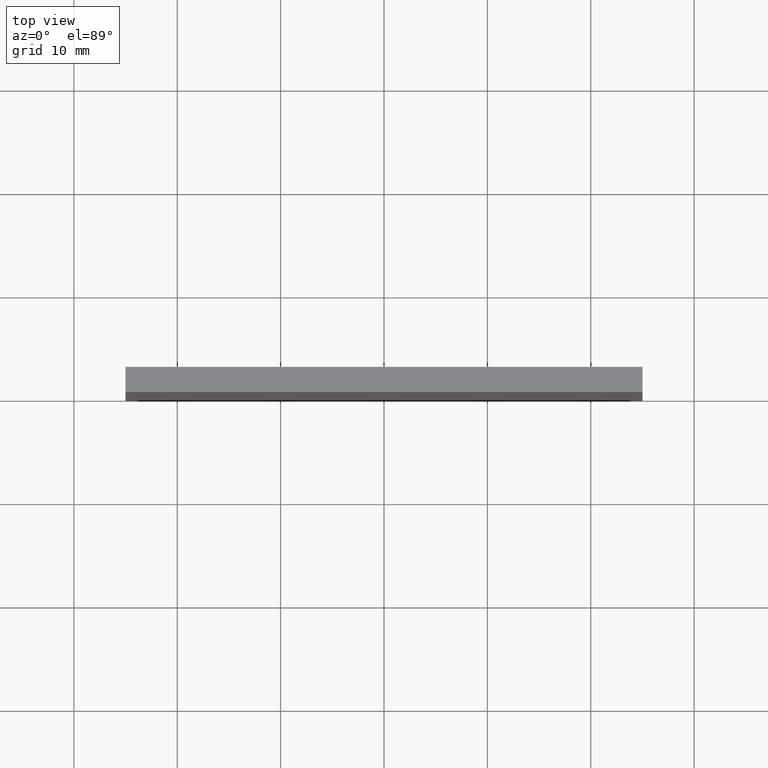
[diagram: clean part render]
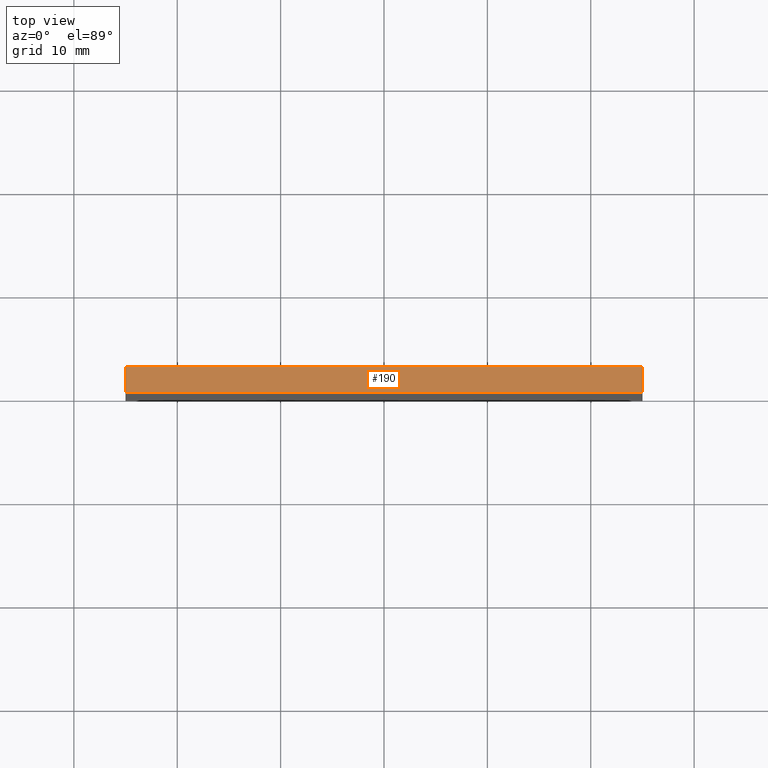
[diagram: same view with one face highlighted and labeled with its STEP entity id]
A machine part, top view. The second image highlights one B-rep face of the part: STEP entity #190.
In plain terms, the highlighted planar face has unit normal (0, 0, -1).
Its self-contained STEP definition (entity closure, byte-faithful):
#9 = ORIENTED_EDGE ( 'NONE', *, *, #191, .T. ) ;
#25 = DIRECTION ( 'NONE',  ( -0.0000000000000000000, -1.000000000000000000, -0.0000000000000000000 ) ) ;
#33 = EDGE_CURVE ( 'NONE', #75, #47, #103, .T. ) ;
#35 = EDGE_CURVE ( 'NONE', #47, #62, #109, .T. ) ;
#41 = DIRECTION ( 'NONE',  ( 1.000000000000000000, 0.0000000000000000000, 0.0000000000000000000 ) ) ;
#46 = CARTESIAN_POINT ( 'NONE',  ( 25.00000000000000000, 0.0000000000000000000, 25.00000000000000000 ) ) ;
#47 = VERTEX_POINT ( 'NONE', #76 ) ;
#48 = ORIENTED_EDGE ( 'NONE', *, *, #35, .F. ) ;
#53 = CARTESIAN_POINT ( 'NONE',  ( -25.00000000000000000, 2.439999999999999900, 25.00000000000000000 ) ) ;
#56 = VECTOR ( 'NONE', #61, 1000.000000000000000 ) ;
#59 = VECTOR ( 'NONE', #161, 1000.000000000000000 ) ;
#61 = DIRECTION ( 'NONE',  ( 1.000000000000000000, 0.0000000000000000000, 0.0000000000000000000 ) ) ;
#62 = VERTEX_POINT ( 'NONE', #46 ) ;
#64 = AXIS2_PLACEMENT_3D ( 'NONE', #116, #160, #177 ) ;
#75 = VERTEX_POINT ( 'NONE', #144 ) ;
#76 = CARTESIAN_POINT ( 'NONE',  ( 25.00000000000000000, 2.439999999999999900, 25.00000000000000000 ) ) ;
#77 = FACE_OUTER_BOUND ( 'NONE', #175, .T. ) ;
#82 = CARTESIAN_POINT ( 'NONE',  ( -25.00000000000000000, 0.0000000000000000000, 25.00000000000000000 ) ) ;
#89 = CARTESIAN_POINT ( 'NONE',  ( 25.00000000000000000, 2.439999999999999900, 25.00000000000000000 ) ) ;
#99 = ORIENTED_EDGE ( 'NONE', *, *, #33, .F. ) ;
#103 = LINE ( 'NONE', #187, #120 ) ;
#109 = LINE ( 'NONE', #89, #59 ) ;
#116 = CARTESIAN_POINT ( 'NONE',  ( -25.00000000000000000, 2.439999999999999900, 25.00000000000000000 ) ) ;
#120 = VECTOR ( 'NONE', #41, 1000.000000000000000 ) ;
#126 = ORIENTED_EDGE ( 'NONE', *, *, #155, .T. ) ;
#128 = PLANE ( 'NONE',  #64 ) ;
#136 = VERTEX_POINT ( 'NONE', #196 ) ;
#137 = LINE ( 'NONE', #53, #185 ) ;
#144 = CARTESIAN_POINT ( 'NONE',  ( -25.00000000000000000, 2.439999999999999900, 25.00000000000000000 ) ) ;
#145 = LINE ( 'NONE', #82, #56 ) ;
#155 = EDGE_CURVE ( 'NONE', #136, #62, #145, .T. ) ;
#160 = DIRECTION ( 'NONE',  ( 0.0000000000000000000, 0.0000000000000000000, -1.000000000000000000 ) ) ;
#161 = DIRECTION ( 'NONE',  ( -0.0000000000000000000, -1.000000000000000000, -0.0000000000000000000 ) ) ;
#175 = EDGE_LOOP ( 'NONE', ( #126, #48, #99, #9 ) ) ;
#177 = DIRECTION ( 'NONE',  ( -1.000000000000000000, 0.0000000000000000000, -0.0000000000000000000 ) ) ;
#185 = VECTOR ( 'NONE', #25, 1000.000000000000000 ) ;
#187 = CARTESIAN_POINT ( 'NONE',  ( -25.00000000000000000, 2.439999999999999900, 25.00000000000000000 ) ) ;
#190 = ADVANCED_FACE ( 'NONE', ( #77 ), #128, .F. ) ;
#191 = EDGE_CURVE ( 'NONE', #75, #136, #137, .T. ) ;
#196 = CARTESIAN_POINT ( 'NONE',  ( -25.00000000000000000, 0.0000000000000000000, 25.00000000000000000 ) ) ;